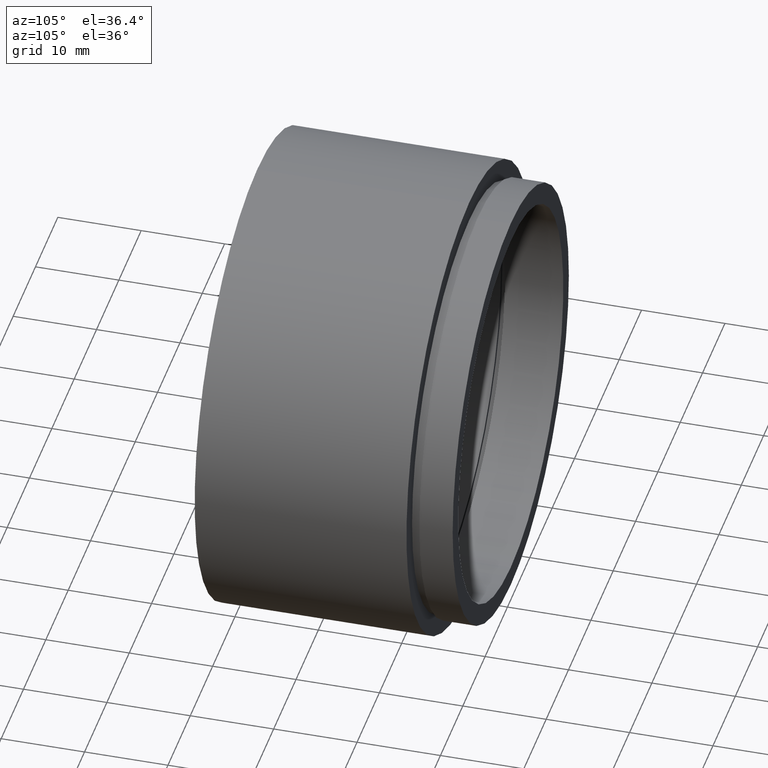
[diagram: clean part render]
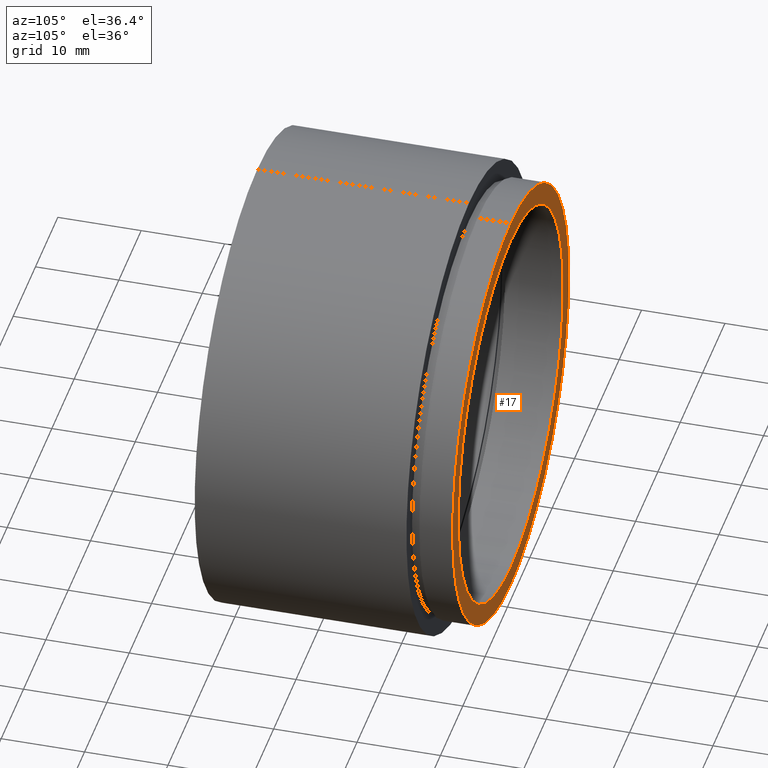
[diagram: same view with one face highlighted and labeled with its STEP entity id]
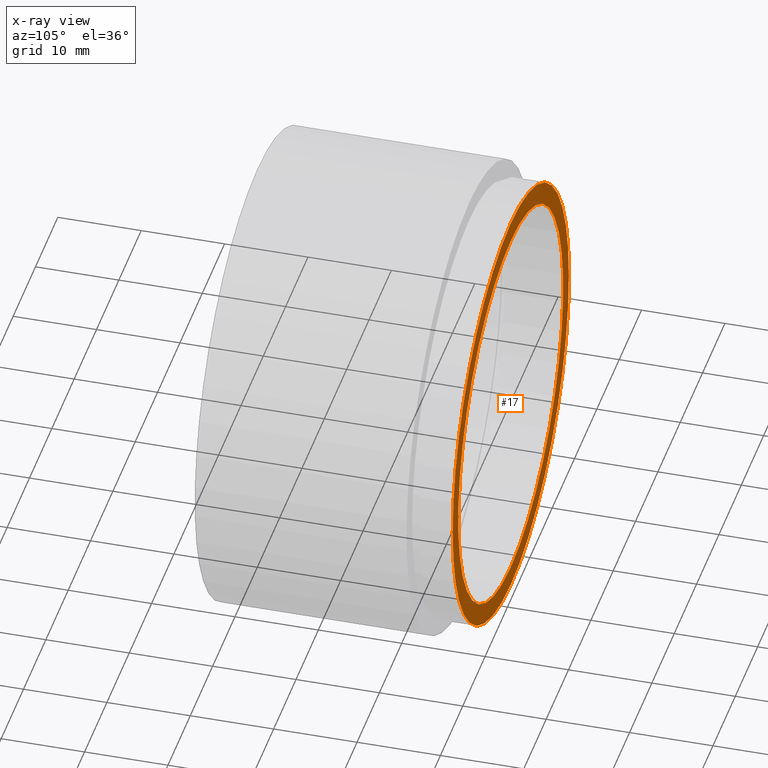
[diagram: x-ray of the same camera — body ghosted, the highlighted face saturated]
A machine part, auxiliary view. The second image highlights one B-rep face of the part: STEP entity #17.
The next image is the same camera in x-ray: the body ghosted, the highlighted face saturated — about 0% of this face is hidden behind the body in this view.
In plain terms, the highlighted planar face has unit normal (0, -1, 0).
Its self-contained STEP definition (entity closure, byte-faithful):
#5 = VERTEX_POINT ( 'NONE', #621 ) ;
#6 = EDGE_LOOP ( 'NONE', ( #161, #217 ) ) ;
#17 = ADVANCED_FACE ( 'NONE', ( #533, #618 ), #58, .F. ) ;
#19 = DIRECTION ( 'NONE',  ( 0.0000000000000000000, 0.0000000000000000000, 1.000000000000000000 ) ) ;
#29 = AXIS2_PLACEMENT_3D ( 'NONE', #379, #128, #188 ) ;
#30 = CIRCLE ( 'NONE', #344, 23.50000000000001400 ) ;
#46 = CARTESIAN_POINT ( 'NONE',  ( 0.0000000000000000000, 30.39999999999998400, 26.00000000000001800 ) ) ;
#50 = CARTESIAN_POINT ( 'NONE',  ( 23.50000000000001400, 30.39999999999998400, 0.0000000000000000000 ) ) ;
#58 = PLANE ( 'NONE',  #117 ) ;
#74 = AXIS2_PLACEMENT_3D ( 'NONE', #544, #589, #214 ) ;
#75 = EDGE_CURVE ( 'NONE', #350, #5, #30, .T. ) ;
#117 = AXIS2_PLACEMENT_3D ( 'NONE', #50, #573, #308 ) ;
#127 = AXIS2_PLACEMENT_3D ( 'NONE', #471, #283, #338 ) ;
#128 = DIRECTION ( 'NONE',  ( -0.0000000000000000000, 1.000000000000000000, -0.0000000000000000000 ) ) ;
#158 = CARTESIAN_POINT ( 'NONE',  ( 0.0000000000000000000, 30.39999999999998400, 0.0000000000000000000 ) ) ;
#161 = ORIENTED_EDGE ( 'NONE', *, *, #207, .T. ) ;
#167 = EDGE_CURVE ( 'NONE', #5, #350, #603, .T. ) ;
#170 = ORIENTED_EDGE ( 'NONE', *, *, #75, .F. ) ;
#188 = DIRECTION ( 'NONE',  ( 0.0000000000000000000, 0.0000000000000000000, 1.000000000000000000 ) ) ;
#192 = EDGE_LOOP ( 'NONE', ( #170, #458 ) ) ;
#207 = EDGE_CURVE ( 'NONE', #357, #565, #219, .T. ) ;
#214 = DIRECTION ( 'NONE',  ( 0.0000000000000000000, 0.0000000000000000000, 1.000000000000000000 ) ) ;
#217 = ORIENTED_EDGE ( 'NONE', *, *, #542, .T. ) ;
#219 = CIRCLE ( 'NONE', #127, 26.00000000000001800 ) ;
#283 = DIRECTION ( 'NONE',  ( -0.0000000000000000000, 1.000000000000000000, -0.0000000000000000000 ) ) ;
#308 = DIRECTION ( 'NONE',  ( 0.0000000000000000000, -0.0000000000000000000, -1.000000000000000000 ) ) ;
#338 = DIRECTION ( 'NONE',  ( 0.0000000000000000000, 0.0000000000000000000, 1.000000000000000000 ) ) ;
#344 = AXIS2_PLACEMENT_3D ( 'NONE', #158, #543, #19 ) ;
#350 = VERTEX_POINT ( 'NONE', #433 ) ;
#357 = VERTEX_POINT ( 'NONE', #46 ) ;
#379 = CARTESIAN_POINT ( 'NONE',  ( 0.0000000000000000000, 30.39999999999998400, 0.0000000000000000000 ) ) ;
#408 = CIRCLE ( 'NONE', #74, 26.00000000000001800 ) ;
#433 = CARTESIAN_POINT ( 'NONE',  ( 0.0000000000000000000, 30.39999999999998400, 23.50000000000001400 ) ) ;
#458 = ORIENTED_EDGE ( 'NONE', *, *, #167, .F. ) ;
#471 = CARTESIAN_POINT ( 'NONE',  ( 0.0000000000000000000, 30.39999999999998400, 0.0000000000000000000 ) ) ;
#533 = FACE_BOUND ( 'NONE', #192, .T. ) ;
#542 = EDGE_CURVE ( 'NONE', #565, #357, #408, .T. ) ;
#543 = DIRECTION ( 'NONE',  ( -0.0000000000000000000, 1.000000000000000000, -0.0000000000000000000 ) ) ;
#544 = CARTESIAN_POINT ( 'NONE',  ( 0.0000000000000000000, 30.39999999999998400, 0.0000000000000000000 ) ) ;
#565 = VERTEX_POINT ( 'NONE', #582 ) ;
#573 = DIRECTION ( 'NONE',  ( 0.0000000000000000000, -1.000000000000000000, 0.0000000000000000000 ) ) ;
#582 = CARTESIAN_POINT ( 'NONE',  ( 3.184081677783120200E-015, 30.39999999999998400, -26.00000000000001800 ) ) ;
#589 = DIRECTION ( 'NONE',  ( -0.0000000000000000000, 1.000000000000000000, -0.0000000000000000000 ) ) ;
#603 = CIRCLE ( 'NONE', #29, 23.50000000000001400 ) ;
#618 = FACE_OUTER_BOUND ( 'NONE', #6, .T. ) ;
#621 = CARTESIAN_POINT ( 'NONE',  ( 2.877919977996281900E-015, 30.39999999999998400, -23.50000000000001400 ) ) ;